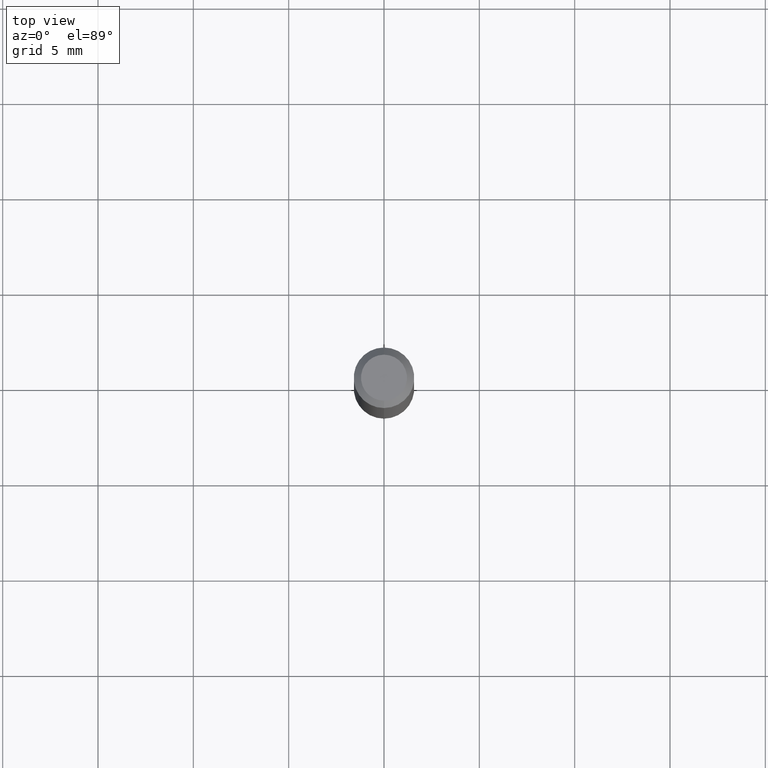
[diagram: clean part render]
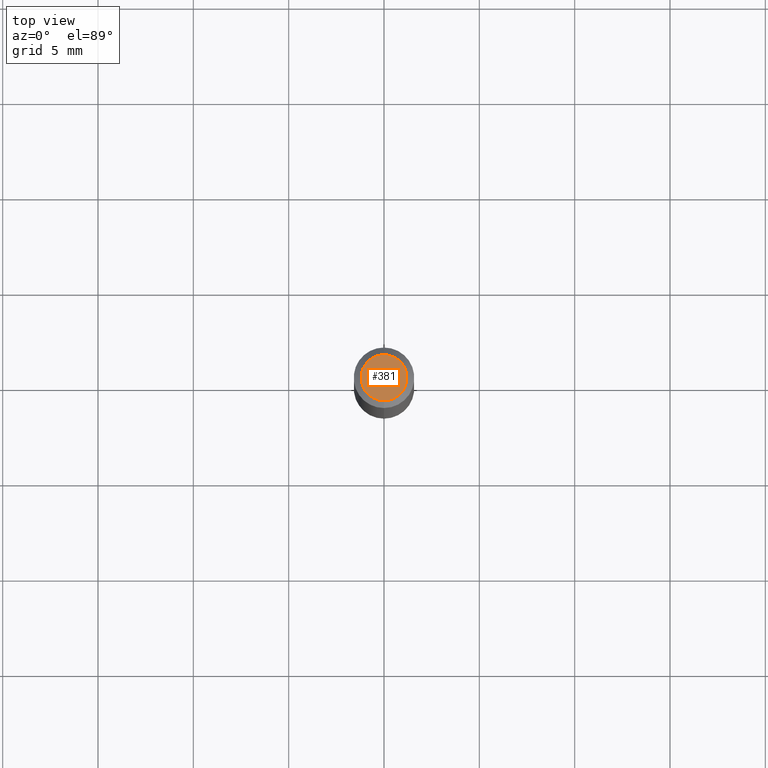
[diagram: same view with one face highlighted and labeled with its STEP entity id]
A machine part, top view. The second image highlights one B-rep face of the part: STEP entity #381.
In plain terms, the highlighted planar face has unit normal (0, -0, -1).
Its self-contained STEP definition (entity closure, byte-faithful):
#9 = DIRECTION ( 'NONE',  ( -6.982962677686266711E-15, -1.000000000000000000, 3.491501098041445958E-15 ) ) ;
#23 = ORIENTED_EDGE ( 'NONE', *, *, #295, .T. ) ;
#77 = ORIENTED_EDGE ( 'NONE', *, *, #228, .T. ) ;
#86 = AXIS2_PLACEMENT_3D ( 'NONE', #252, #366, #139 ) ;
#112 = AXIS2_PLACEMENT_3D ( 'NONE', #319, #360, #239 ) ;
#139 = DIRECTION ( 'NONE',  ( -6.982962677686266711E-15, -1.000000000000000000, 3.491501098041445958E-15 ) ) ;
#213 = CIRCLE ( 'NONE', #86, 0.04749999999999999362 ) ;
#228 = EDGE_CURVE ( 'NONE', #424, #323, #402, .T. ) ;
#239 = DIRECTION ( 'NONE',  ( 6.982962677686265922E-15, 1.000000000000000000, -3.491501098041445564E-15 ) ) ;
#247 = CARTESIAN_POINT ( 'NONE',  ( 3.840629472727447874E-16, 0.04749999999999999362, 7.364327909283752044E-17 ) ) ;
#252 = CARTESIAN_POINT ( 'NONE',  ( -5.856609959295220328E-45, 8.361781359031840583E-31, 2.394895812498061364E-16 ) ) ;
#286 = FACE_OUTER_BOUND ( 'NONE', #455, .T. ) ;
#287 = AXIS2_PLACEMENT_3D ( 'NONE', #330, #438, #9 ) ;
#295 = EDGE_CURVE ( 'NONE', #323, #424, #213, .T. ) ;
#316 = PLANE ( 'NONE',  #112 ) ;
#319 = CARTESIAN_POINT ( 'NONE',  ( 3.316907271900976096E-16, 0.04749999999999999362, -4.610151153206555393E-17 ) ) ;
#323 = VERTEX_POINT ( 'NONE', #342 ) ;
#330 = CARTESIAN_POINT ( 'NONE',  ( -5.856609959295220328E-45, 8.361781359031840583E-31, 2.394895812498061364E-16 ) ) ;
#342 = CARTESIAN_POINT ( 'NONE',  ( -3.773273898774340269E-16, -0.04749999999999999362, 4.053358834067748017E-16 ) ) ;
#360 = DIRECTION ( 'NONE',  ( 2.445455008410709186E-29, -3.491501098041445564E-15, -1.000000000000000000 ) ) ;
#366 = DIRECTION ( 'NONE',  ( -2.445455008410709746E-29, 3.491501098041445170E-15, 1.000000000000000000 ) ) ;
#381 = ADVANCED_FACE ( 'NONE', ( #286 ), #316, .F. ) ;
#402 = CIRCLE ( 'NONE', #287, 0.04749999999999999362 ) ;
#424 = VERTEX_POINT ( 'NONE', #247 ) ;
#438 = DIRECTION ( 'NONE',  ( -2.445455008410709746E-29, 3.491501098041445170E-15, 1.000000000000000000 ) ) ;
#455 = EDGE_LOOP ( 'NONE', ( #77, #23 ) ) ;